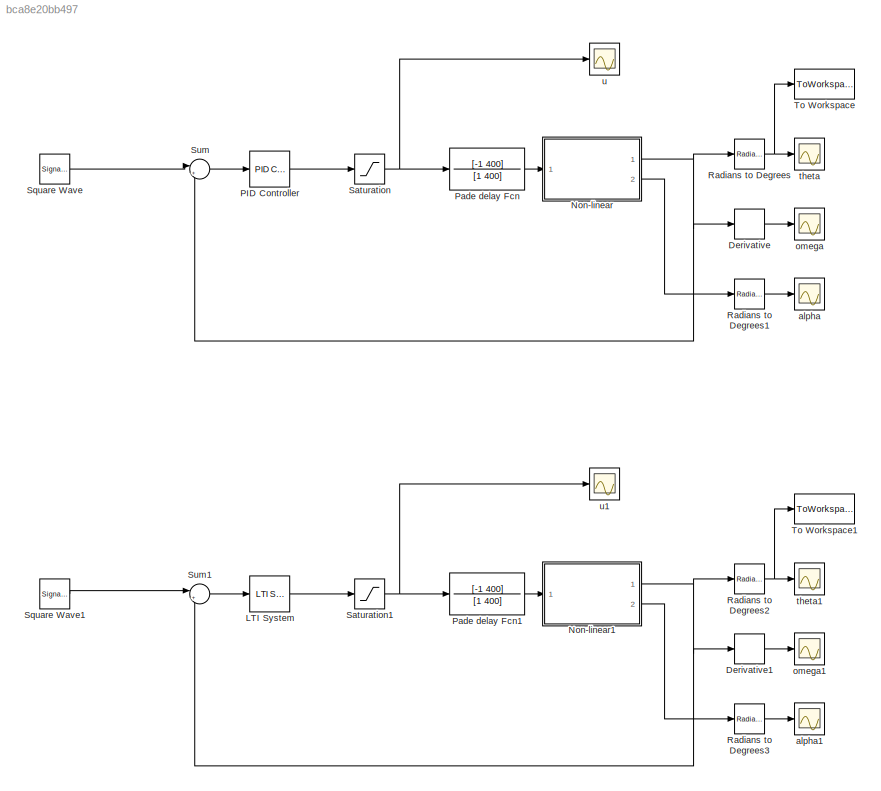
MODEL slx_bca8e20bb497
KIND model
CONFIG AbsTol = auto
CONFIG EnableMultiTasking = on
CONFIG FixedStep = 0.002
CONFIG MaxStep = auto
CONFIG MinStep = auto
CONFIG RelTol = 1e-3
CONFIG SampleTimeConstraint = Unconstrained
CONFIG Solver = FixedStepAuto
CONFIG SolverName = FixedStepAuto
CONFIG StartTime = 0.0
CONFIG StopTime = 5
BLOCK [Derivative] Derivative
BLOCK [Derivative] Derivative1
BLOCK [Reference] LTI System  REF=cstblocks/LTI System
  Ports = [1, 1]
  SourceBlock = cstblocks/LTI System
  SourceProductBaseCode = CT
  SourceType = LTI Block
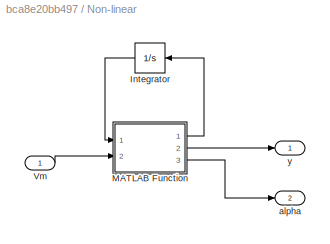
BLOCK [SubSystem] Non-linear
  Ports = [1, 2]
  RequestExecContextInheritance = off
BLOCK [Integrator] Non-linear/Integrator
  InitialCondition = [0 0 0 0]
  Ports = [1, 1]
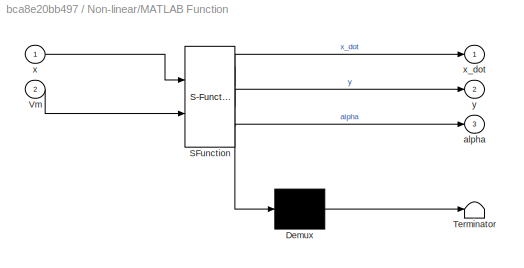
BLOCK [SubSystem] Non-linear/MATLAB Function
  ErrorFcn = Stateflow.Translate.translate
  PermitHierarchicalResolution = ExplicitOnly
  Ports = [2, 3]
  RequestExecContextInheritance = off
  SFBlockType = MATLAB Function
  TreatAsAtomicUnit = on
BLOCK [Demux] Non-linear/MATLAB Function/ Demux 
  Outputs = 1
  Ports = [1, 1]
BLOCK [S-Function] Non-linear/MATLAB Function/ SFunction 
  EnableBusSupport = on
  FunctionName = sf_sfun
  PortCounts = [2 4]
  Ports = [2, 4]
  SFcnIsStateOwnerBlock = off
  SFunctionDeploymentMode = off
  Tag = Stateflow S-Function Pendulum_2_sim 2
BLOCK [Terminator] Non-linear/MATLAB Function/ Terminator 
BLOCK [Inport] Non-linear/MATLAB Function/Vm
  Port = 2
BLOCK [Outport] Non-linear/MATLAB Function/alpha
  Port = 3
BLOCK [Inport] Non-linear/MATLAB Function/x
BLOCK [Outport] Non-linear/MATLAB Function/x_dot
BLOCK [Outport] Non-linear/MATLAB Function/y
  Port = 2
BLOCK [Inport] Non-linear/Vm
BLOCK [Outport] Non-linear/alpha
  Port = 2
BLOCK [Outport] Non-linear/y
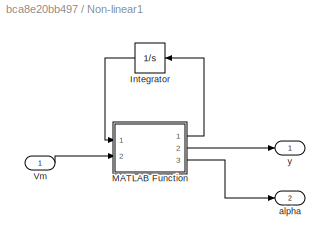
BLOCK [SubSystem] Non-linear1
  Ports = [1, 2]
  RequestExecContextInheritance = off
BLOCK [Integrator] Non-linear1/Integrator
  InitialCondition = [0 0 0 0]
  Ports = [1, 1]
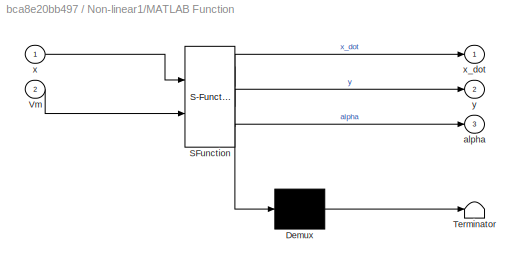
BLOCK [SubSystem] Non-linear1/MATLAB Function
  ErrorFcn = Stateflow.Translate.translate
  PermitHierarchicalResolution = ExplicitOnly
  Ports = [2, 3]
  RequestExecContextInheritance = off
  SFBlockType = MATLAB Function
  TreatAsAtomicUnit = on
BLOCK [Demux] Non-linear1/MATLAB Function/ Demux 
  Outputs = 1
  Ports = [1, 1]
BLOCK [S-Function] Non-linear1/MATLAB Function/ SFunction 
  EnableBusSupport = on
  FunctionName = sf_sfun
  PortCounts = [2 4]
  Ports = [2, 4]
  SFcnIsStateOwnerBlock = off
  SFunctionDeploymentMode = off
  Tag = Stateflow S-Function Pendulum_2_sim 1
BLOCK [Terminator] Non-linear1/MATLAB Function/ Terminator 
BLOCK [Inport] Non-linear1/MATLAB Function/Vm
  Port = 2
BLOCK [Outport] Non-linear1/MATLAB Function/alpha
  Port = 3
BLOCK [Inport] Non-linear1/MATLAB Function/x
BLOCK [Outport] Non-linear1/MATLAB Function/x_dot
BLOCK [Outport] Non-linear1/MATLAB Function/y
  Port = 2
BLOCK [Inport] Non-linear1/Vm
BLOCK [Outport] Non-linear1/alpha
  Port = 2
BLOCK [Outport] Non-linear1/y
BLOCK [Reference] PID Controller  REF=simulink/Continuous/PID Controller
  Ports = [1, 1]
  SourceBlock = simulink/Continuous/PID Controller
  SourceProductBaseCode = SL
  SourceType = PID 1dof
BLOCK [TransferFcn] Pade delay Fcn
  Denominator = [1 400]
  Numerator = [-1 400]
BLOCK [TransferFcn] Pade delay Fcn1
  Denominator = [1 400]
  Numerator = [-1 400]
BLOCK [Reference] Radians to Degrees  REF=simulink_extras/Transformations/Radians
to Degrees
  Ports = [1, 1]
  SourceBlock = simulink_extras/Transformations/Radians\nto Degrees
  SourceProductBaseCode = SL
  SourceType = RadiansToDegrees
BLOCK [Reference] Radians to Degrees1  REF=simulink_extras/Transformations/Radians
to Degrees
  Ports = [1, 1]
  SourceBlock = simulink_extras/Transformations/Radians\nto Degrees
  SourceProductBaseCode = SL
  SourceType = RadiansToDegrees
BLOCK [Reference] Radians to Degrees2  REF=simulink_extras/Transformations/Radians
to Degrees
  Ports = [1, 1]
  SourceBlock = simulink_extras/Transformations/Radians\nto Degrees
  SourceProductBaseCode = SL
  SourceType = RadiansToDegrees
BLOCK [Reference] Radians to Degrees3  REF=simulink_extras/Transformations/Radians
to Degrees
  Ports = [1, 1]
  SourceBlock = simulink_extras/Transformations/Radians\nto Degrees
  SourceProductBaseCode = SL
  SourceType = RadiansToDegrees
BLOCK [Saturate] Saturation
  LowerLimit = -10
  UpperLimit = 10
BLOCK [Saturate] Saturation1
  LowerLimit = -10
  UpperLimit = 10
BLOCK [SignalGenerator] Square Wave
  Amplitude = deg2rad(10)
  Frequency = 0.5
  Ports = [0, 1]
  WaveForm = square
BLOCK [SignalGenerator] Square Wave1
  Amplitude = deg2rad(10)
  Frequency = 0.5
  Ports = [0, 1]
  WaveForm = square
BLOCK [Sum] Sum
  Inputs = |+-
  Ports = [2, 1]
BLOCK [Sum] Sum1
  Inputs = |+-
  Ports = [2, 1]
BLOCK [ToWorkspace] To Workspace
  FixptAsFi = on
  MaxDataPoints = inf
  Ports = [1]
  SampleTime = -1
  VariableName = sim_result_pid
BLOCK [ToWorkspace] To Workspace1
  FixptAsFi = on
  MaxDataPoints = inf
  Ports = [1]
  SampleTime = -1
  VariableName = sim_result_ls
BLOCK [Scope] alpha
  Floating = off
  NumInputPorts = 1
  Ports = [1]
  ScopeSpecificationString = Simulink.scopes.TimeScopeBlockCfg('CurrentConfiguration', extmgr.ConfigurationSet(extmgr.Configuration('Core','General UI',true),extmgr.Configuration('Core','Source UI',true),extmgr.Configuration('Sources','WiredSimulink',true,'DataLoggingVariableName','ScopeData1'),extmgr.Configuration('Visuals','Time Domain',true,'SerializedDisplays',{struct('MinYLimReal','-18.4537','MaxYLimReal','18.59394','YLa...<+1492ch>
BLOCK [Scope] alpha1
  Floating = off
  NumInputPorts = 1
  Ports = [1]
  ScopeSpecificationString = Simulink.scopes.TimeScopeBlockCfg('CurrentConfiguration', extmgr.ConfigurationSet(extmgr.Configuration('Core','General UI',true),extmgr.Configuration('Core','Source UI',true),extmgr.Configuration('Sources','WiredSimulink',true,'DataLoggingVariableName','ScopeData2'),extmgr.Configuration('Visuals','Time Domain',true,'SerializedDisplays',{struct('MinYLimReal','-18.4537','MaxYLimReal','18.59394','YLa...<+1492ch>
BLOCK [Scope] omega
  Floating = off
  NumInputPorts = 1
  Ports = [1]
  ScopeSpecificationString = Simulink.scopes.TimeScopeBlockCfg('CurrentConfiguration', extmgr.ConfigurationSet(extmgr.Configuration('Core','General UI',true),extmgr.Configuration('Core','Source UI',true),extmgr.Configuration('Sources','WiredSimulink',true),extmgr.Configuration('Visuals','Time Domain',true,'SerializedDisplays',{struct('MinYLimReal','-0.15967','MaxYLimReal','0.18021','YLabelReal','','MinYLimMag','0.00000','MaxY...<+1349ch>
BLOCK [Scope] omega1
  Floating = off
  NumInputPorts = 1
  Ports = [1]
  ScopeSpecificationString = Simulink.scopes.TimeScopeBlockCfg('CurrentConfiguration', extmgr.ConfigurationSet(extmgr.Configuration('Core','General UI',true),extmgr.Configuration('Core','Source UI',true),extmgr.Configuration('Sources','WiredSimulink',true,'DataLoggingVariableName','ScopeData3'),extmgr.Configuration('Visuals','Time Domain',true,'SerializedDisplays',{struct('MinYLimReal','-0.15967','MaxYLimReal','0.18021','YLab...<+1388ch>
BLOCK [Scope] theta
  Floating = off
  NumInputPorts = 1
  Ports = [1]
  ScopeSpecificationString = Simulink.scopes.TimeScopeBlockCfg('CurrentConfiguration', extmgr.ConfigurationSet(extmgr.Configuration('Core','General UI',true),extmgr.Configuration('Core','Source UI',true),extmgr.Configuration('Sources','WiredSimulink',true,'DataLoggingVariableName','ScopeData2'),extmgr.Configuration('Visuals','Time Domain',true,'SerializedDisplays',{struct('MinYLimReal','-16.65603','MaxYLimReal','16.64875','YL...<+1493ch>
BLOCK [Scope] theta1
  Floating = off
  NumInputPorts = 1
  Ports = [1]
  ScopeSpecificationString = Simulink.scopes.TimeScopeBlockCfg('CurrentConfiguration', extmgr.ConfigurationSet(extmgr.Configuration('Core','General UI',true),extmgr.Configuration('Core','Source UI',true),extmgr.Configuration('Sources','WiredSimulink',true,'DataLoggingVariableName','ScopeData4'),extmgr.Configuration('Visuals','Time Domain',true,'SerializedDisplays',{struct('MinYLimReal','-16.65603','MaxYLimReal','16.64875','YL...<+1494ch>
BLOCK [Scope] u
  Floating = off
  NumInputPorts = 1
  Ports = [1]
  ScopeSpecificationString = Simulink.scopes.TimeScopeBlockCfg('CurrentConfiguration', extmgr.ConfigurationSet(extmgr.Configuration('Core','General UI',true),extmgr.Configuration('Core','Source UI',true),extmgr.Configuration('Sources','WiredSimulink',true,'DataLoggingVariableName','ScopeData1'),extmgr.Configuration('Visuals','Time Domain',true,'SerializedDisplays',{struct('MinYLimReal','-4.44916','MaxYLimReal','4.45057','YLab...<+1369ch>
BLOCK [Scope] u1
  Floating = off
  NumInputPorts = 1
  Ports = [1]
  ScopeSpecificationString = Simulink.scopes.TimeScopeBlockCfg('CurrentConfiguration', extmgr.ConfigurationSet(extmgr.Configuration('Core','General UI',true),extmgr.Configuration('Core','Source UI',true),extmgr.Configuration('Sources','WiredSimulink',true,'DataLoggingVariableName','ScopeData5'),extmgr.Configuration('Visuals','Time Domain',true,'SerializedDisplays',{struct('MinYLimReal','-4.44916','MaxYLimReal','4.45057','YLab...<+1369ch>
LINE Derivative1:1 -> omega1:1
LINE Derivative:1 -> omega:1
LINE LTI System:1 -> Saturation1:1
LINE Non-linear/Integrator:1 -> Non-linear/MATLAB Function:1
LINE Non-linear/MATLAB Function:1 -> Non-linear/Integrator:1
LINE Non-linear/MATLAB Function:2 -> Non-linear/y:1
LINE Non-linear/MATLAB Function:3 -> Non-linear/alpha:1
LINE Non-linear/Vm:1 -> Non-linear/MATLAB Function:2
LINE Non-linear1/Integrator:1 -> Non-linear1/MATLAB Function:1
LINE Non-linear1/MATLAB Function:1 -> Non-linear1/Integrator:1
LINE Non-linear1/MATLAB Function:2 -> Non-linear1/y:1
LINE Non-linear1/MATLAB Function:3 -> Non-linear1/alpha:1
LINE Non-linear1/Vm:1 -> Non-linear1/MATLAB Function:2
NET Non-linear1:1 -> Derivative1:1, Radians to Degrees2:1, Sum1:2
LINE Non-linear1:2 -> Radians to Degrees3:1
NET Non-linear:1 -> Derivative:1, Radians to Degrees:1, Sum:2
LINE Non-linear:2 -> Radians to Degrees1:1
LINE PID Controller:1 -> Saturation:1
LINE Pade delay Fcn1:1 -> Non-linear1:1
LINE Pade delay Fcn:1 -> Non-linear:1
LINE Radians to Degrees1:1 -> alpha:1
NET Radians to Degrees2:1 -> To Workspace1:1, theta1:1
LINE Radians to Degrees3:1 -> alpha1:1
NET Radians to Degrees:1 -> To Workspace:1, theta:1
NET Saturation1:1 -> Pade delay Fcn1:1, u1:1
NET Saturation:1 -> Pade delay Fcn:1, u:1
LINE Square Wave1:1 -> Sum1:1
LINE Square Wave:1 -> Sum:1
LINE Sum1:1 -> LTI System:1
LINE Sum:1 -> PID Controller:1
note: NET lines group one-source signal fan-out (src -> all destinations, sorted); 1:1 wires keep LINE
CHART Non-linear1/MATLAB Function states=1 transitions=1
  STATE_LABEL 'eML_blk_kernel()'
  STATE_LABEL 'SCRIPT:\nfunction [x_dot, y, alpha] = fcn(x, Vm)\nx_dot = [x(2); get_theta_ddot(x(1),x(2),x(3),x(4),Vm); x(4); get_alpha_ddot(x(1),x(2),x(3),x(4),Vm)];\ny = x(1);\nalpha = x(3);\nend\n\n\n\n'
CHART Non-linear/MATLAB Function states=1 transitions=1
  STATE_LABEL 'eML_blk_kernel()'
  STATE_LABEL 'SCRIPT:\nfunction [x_dot, y, alpha] = fcn(x, Vm)\nx_dot = [x(2); get_theta_ddot(x(1),x(2),x(3),x(4),Vm); x(4); get_alpha_ddot(x(1),x(2),x(3),x(4),Vm)];\ny = x(1);\nalpha = x(3);\nend\n\n\n\n'
